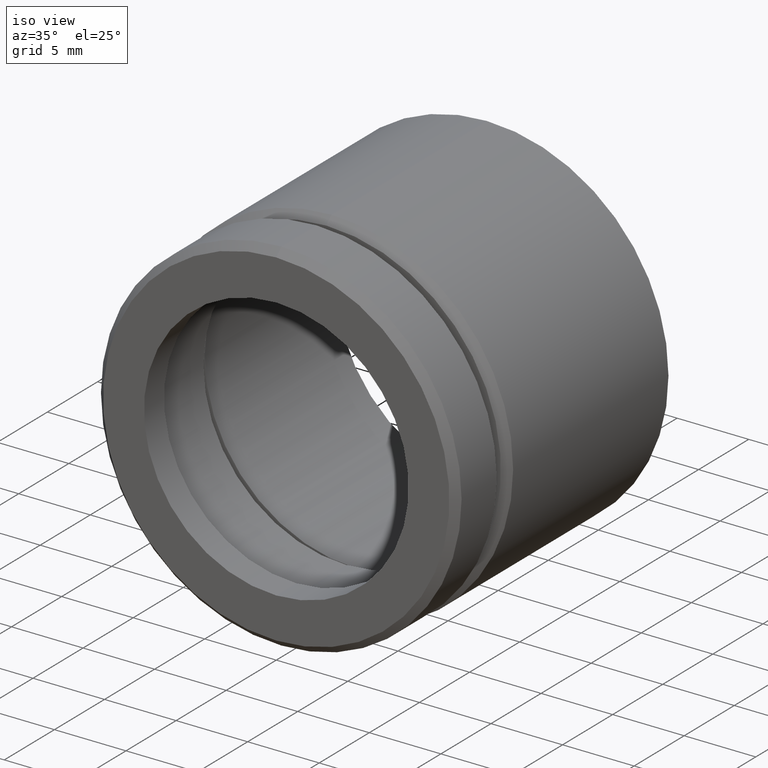
[diagram: clean part render]
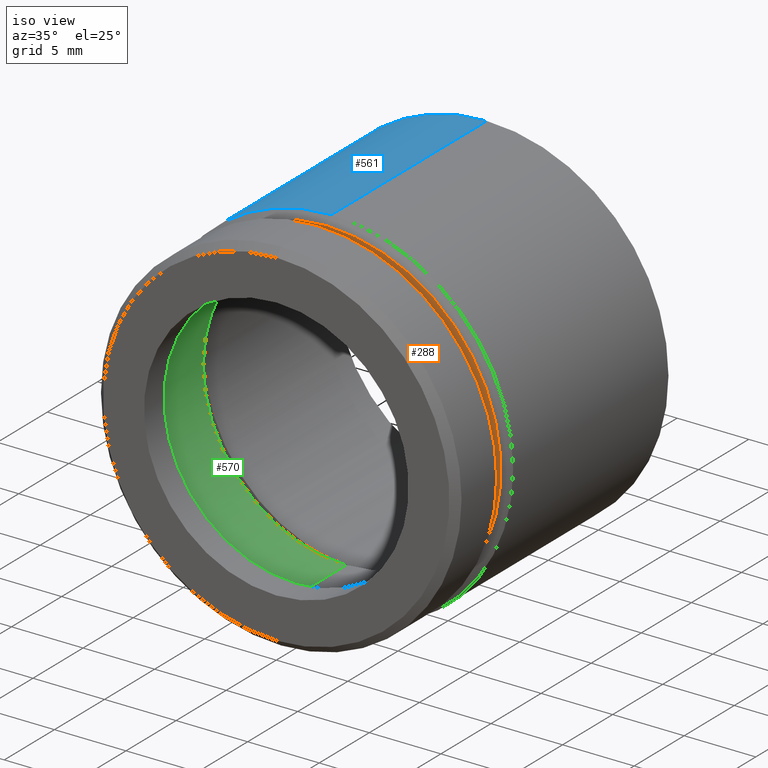
[diagram: same view with three faces highlighted in distinct colors, each labeled with its STEP entity id]
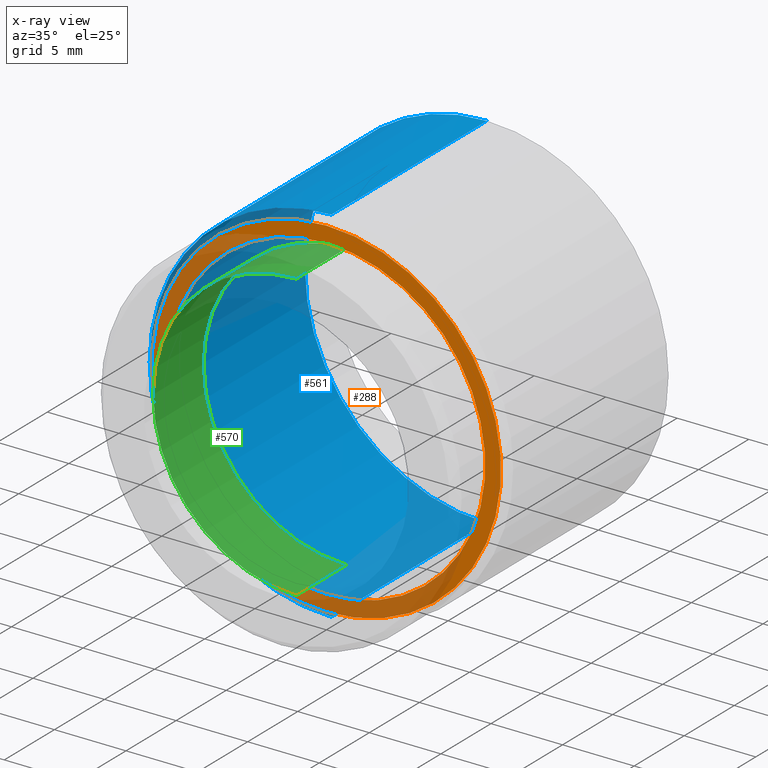
[diagram: x-ray of the same camera — body ghosted, the three highlighted faces saturated]
A machine part, iso view with three faces highlighted in distinct colors.
The next image is the same camera in x-ray (body ghosted, the three faces saturated) — at least one of them is partly hidden behind the body in this view.
Their STEP definitions:

[orange] entity #288 — the highlighted planar face has unit normal (0, -1, -0).
#27 = DIRECTION ( 'NONE',  ( -0.0000000000000000000, -1.000000000000000000, -0.0000000000000000000 ) ) ;
#32 = DIRECTION ( 'NONE',  ( -0.0000000000000000000, -1.000000000000000000, -0.0000000000000000000 ) ) ;
#34 = ORIENTED_EDGE ( 'NONE', *, *, #369, .T. ) ;
#64 = AXIS2_PLACEMENT_3D ( 'NONE', #417, #216, #829 ) ;
#124 = CARTESIAN_POINT ( 'NONE',  ( 0.0000000000000000000, 5.000000000000000000, 0.0000000000000000000 ) ) ;
#132 = DIRECTION ( 'NONE',  ( -0.0000000000000000000, -1.000000000000000000, -0.0000000000000000000 ) ) ;
#171 = VERTEX_POINT ( 'NONE', #540 ) ;
#183 = ORIENTED_EDGE ( 'NONE', *, *, #807, .F. ) ;
#197 = CARTESIAN_POINT ( 'NONE',  ( 0.0000000000000000000, 5.000000000000000000, 0.0000000000000000000 ) ) ;
#213 = FACE_BOUND ( 'NONE', #431, .T. ) ;
#216 = DIRECTION ( 'NONE',  ( -0.0000000000000000000, -1.000000000000000000, -0.0000000000000000000 ) ) ;
#224 = VERTEX_POINT ( 'NONE', #497 ) ;
#279 = ORIENTED_EDGE ( 'NONE', *, *, #415, .F. ) ;
#288 = ADVANCED_FACE ( 'NONE', ( #654, #213 ), #733, .T. ) ;
#295 = CIRCLE ( 'NONE', #386, 11.10000000000000000 ) ;
#369 = EDGE_CURVE ( 'NONE', #671, #171, #870, .T. ) ;
#372 = EDGE_LOOP ( 'NONE', ( #34, #601 ) ) ;
#386 = AXIS2_PLACEMENT_3D ( 'NONE', #124, #132, #443 ) ;
#402 = AXIS2_PLACEMENT_3D ( 'NONE', #869, #27, #482 ) ;
#415 = EDGE_CURVE ( 'NONE', #512, #224, #295, .T. ) ;
#417 = CARTESIAN_POINT ( 'NONE',  ( 0.0000000000000000000, 5.000000000000000000, 0.0000000000000000000 ) ) ;
#431 = EDGE_LOOP ( 'NONE', ( #279, #183 ) ) ;
#437 = EDGE_CURVE ( 'NONE', #171, #671, #556, .T. ) ;
#443 = DIRECTION ( 'NONE',  ( 0.0000000000000000000, 0.0000000000000000000, -1.000000000000000000 ) ) ;
#454 = CARTESIAN_POINT ( 'NONE',  ( 11.10000000000000000, 5.000000000000000000, 0.0000000000000000000 ) ) ;
#458 = DIRECTION ( 'NONE',  ( 0.0000000000000000000, 0.0000000000000000000, -1.000000000000000000 ) ) ;
#461 = DIRECTION ( 'NONE',  ( 0.0000000000000000000, -1.000000000000000000, -0.0000000000000000000 ) ) ;
#482 = DIRECTION ( 'NONE',  ( 0.0000000000000000000, 0.0000000000000000000, -1.000000000000000000 ) ) ;
#497 = CARTESIAN_POINT ( 'NONE',  ( 1.359357947053562200E-015, 5.000000000000000000, 11.10000000000000000 ) ) ;
#509 = AXIS2_PLACEMENT_3D ( 'NONE', #197, #32, #650 ) ;
#512 = VERTEX_POINT ( 'NONE', #854 ) ;
#524 = CARTESIAN_POINT ( 'NONE',  ( 0.0000000000000000000, 5.000000000000000000, 12.19999999999999900 ) ) ;
#540 = CARTESIAN_POINT ( 'NONE',  ( 1.524685264938454800E-015, 5.000000000000000000, -12.19999999999999900 ) ) ;
#543 = CIRCLE ( 'NONE', #64, 11.10000000000000000 ) ;
#556 = CIRCLE ( 'NONE', #402, 12.19999999999999900 ) ;
#601 = ORIENTED_EDGE ( 'NONE', *, *, #437, .T. ) ;
#650 = DIRECTION ( 'NONE',  ( 0.0000000000000000000, 0.0000000000000000000, -1.000000000000000000 ) ) ;
#654 = FACE_OUTER_BOUND ( 'NONE', #372, .T. ) ;
#671 = VERTEX_POINT ( 'NONE', #524 ) ;
#722 = AXIS2_PLACEMENT_3D ( 'NONE', #454, #461, #458 ) ;
#733 = PLANE ( 'NONE',  #722 ) ;
#807 = EDGE_CURVE ( 'NONE', #224, #512, #543, .T. ) ;
#829 = DIRECTION ( 'NONE',  ( 0.0000000000000000000, 0.0000000000000000000, -1.000000000000000000 ) ) ;
#854 = CARTESIAN_POINT ( 'NONE',  ( 0.0000000000000000000, 5.000000000000000000, -11.10000000000000000 ) ) ;
#869 = CARTESIAN_POINT ( 'NONE',  ( 0.0000000000000000000, 5.000000000000000000, 0.0000000000000000000 ) ) ;
#870 = CIRCLE ( 'NONE', #509, 12.19999999999999900 ) ;

[blue] entity #561 — the highlighted cylindrical surface (partial cylindrical patch) has radius 12.7 mm, axis along (-0, -1, -0).
#1 = ORIENTED_EDGE ( 'NONE', *, *, #832, .T. ) ;
#5 = DIRECTION ( 'NONE',  ( -0.0000000000000000000, -1.000000000000000000, -0.0000000000000000000 ) ) ;
#36 = VERTEX_POINT ( 'NONE', #282 ) ;
#49 = VERTEX_POINT ( 'NONE', #735 ) ;
#81 = CARTESIAN_POINT ( 'NONE',  ( 1.555301434917138400E-015, 20.99999999999998200, 12.69999999999999900 ) ) ;
#100 = VERTEX_POINT ( 'NONE', #81 ) ;
#128 = CARTESIAN_POINT ( 'NONE',  ( 0.0000000000000000000, 5.500000000000002700, 0.0000000000000000000 ) ) ;
#133 = LINE ( 'NONE', #689, #221 ) ;
#154 = DIRECTION ( 'NONE',  ( 0.0000000000000000000, 0.0000000000000000000, -1.000000000000000000 ) ) ;
#159 = CARTESIAN_POINT ( 'NONE',  ( 0.0000000000000000000, 0.0000000000000000000, -12.69999999999999900 ) ) ;
#175 = AXIS2_PLACEMENT_3D ( 'NONE', #340, #761, #154 ) ;
#205 = EDGE_LOOP ( 'NONE', ( #380, #1, #383, #455 ) ) ;
#212 = DIRECTION ( 'NONE',  ( -0.0000000000000000000, -1.000000000000000000, -0.0000000000000000000 ) ) ;
#221 = VECTOR ( 'NONE', #662, 1000.000000000000000 ) ;
#241 = AXIS2_PLACEMENT_3D ( 'NONE', #128, #746, #587 ) ;
#275 = CYLINDRICAL_SURFACE ( 'NONE', #175, 12.69999999999999900 ) ;
#280 = CIRCLE ( 'NONE', #413, 12.69999999999999900 ) ;
#282 = CARTESIAN_POINT ( 'NONE',  ( 0.0000000000000000000, 5.500000000000002700, -12.69999999999999900 ) ) ;
#340 = CARTESIAN_POINT ( 'NONE',  ( 0.0000000000000000000, 0.0000000000000000000, 0.0000000000000000000 ) ) ;
#380 = ORIENTED_EDGE ( 'NONE', *, *, #859, .F. ) ;
#383 = ORIENTED_EDGE ( 'NONE', *, *, #826, .T. ) ;
#410 = VERTEX_POINT ( 'NONE', #779 ) ;
#413 = AXIS2_PLACEMENT_3D ( 'NONE', #698, #212, #862 ) ;
#455 = ORIENTED_EDGE ( 'NONE', *, *, #495, .T. ) ;
#495 = EDGE_CURVE ( 'NONE', #36, #410, #760, .T. ) ;
#561 = ADVANCED_FACE ( 'NONE', ( #805 ), #275, .T. ) ;
#587 = DIRECTION ( 'NONE',  ( 0.0000000000000000000, 0.0000000000000000000, -1.000000000000000000 ) ) ;
#594 = VECTOR ( 'NONE', #5, 1000.000000000000000 ) ;
#662 = DIRECTION ( 'NONE',  ( -0.0000000000000000000, -1.000000000000000000, -0.0000000000000000000 ) ) ;
#683 = LINE ( 'NONE', #159, #594 ) ;
#689 = CARTESIAN_POINT ( 'NONE',  ( 1.555301434917138400E-015, 0.0000000000000000000, 12.69999999999999900 ) ) ;
#698 = CARTESIAN_POINT ( 'NONE',  ( 0.0000000000000000000, 20.99999999999998200, 0.0000000000000000000 ) ) ;
#735 = CARTESIAN_POINT ( 'NONE',  ( 0.0000000000000000000, 20.99999999999998200, -12.69999999999999900 ) ) ;
#746 = DIRECTION ( 'NONE',  ( 0.0000000000000000000, 1.000000000000000000, 0.0000000000000000000 ) ) ;
#760 = CIRCLE ( 'NONE', #241, 12.69999999999999900 ) ;
#761 = DIRECTION ( 'NONE',  ( -0.0000000000000000000, -1.000000000000000000, -0.0000000000000000000 ) ) ;
#779 = CARTESIAN_POINT ( 'NONE',  ( 1.555301434917138400E-015, 5.500000000000002700, 12.69999999999999900 ) ) ;
#805 = FACE_OUTER_BOUND ( 'NONE', #205, .T. ) ;
#826 = EDGE_CURVE ( 'NONE', #49, #36, #683, .T. ) ;
#832 = EDGE_CURVE ( 'NONE', #100, #49, #280, .T. ) ;
#859 = EDGE_CURVE ( 'NONE', #100, #410, #133, .T. ) ;
#862 = DIRECTION ( 'NONE',  ( 0.0000000000000000000, 0.0000000000000000000, 1.000000000000000000 ) ) ;

[green] entity #570 — the highlighted cylindrical surface (partial cylindrical patch) has radius 10 mm, axis along (-0, -1, -0).
#6 = LINE ( 'NONE', #720, #195 ) ;
#13 = CARTESIAN_POINT ( 'NONE',  ( 0.0000000000000000000, 0.0000000000000000000, -10.00000000000000200 ) ) ;
#69 = CARTESIAN_POINT ( 'NONE',  ( 0.0000000000000000000, 6.999999999999999100, 0.0000000000000000000 ) ) ;
#102 = DIRECTION ( 'NONE',  ( 0.0000000000000000000, 0.0000000000000000000, -1.000000000000000000 ) ) ;
#106 = CARTESIAN_POINT ( 'NONE',  ( 0.0000000000000000000, 6.999999999999999100, -10.00000000000000400 ) ) ;
#119 = DIRECTION ( 'NONE',  ( -0.0000000000000000000, -1.000000000000000000, -0.0000000000000000000 ) ) ;
#145 = AXIS2_PLACEMENT_3D ( 'NONE', #167, #119, #102 ) ;
#147 = CARTESIAN_POINT ( 'NONE',  ( 1.224646799147353500E-015, 1.999999999999999600, 10.00000000000000200 ) ) ;
#167 = CARTESIAN_POINT ( 'NONE',  ( 0.0000000000000000000, 0.0000000000000000000, 0.0000000000000000000 ) ) ;
#195 = VECTOR ( 'NONE', #388, 1000.000000000000000 ) ;
#206 = EDGE_CURVE ( 'NONE', #610, #661, #598, .T. ) ;
#250 = DIRECTION ( 'NONE',  ( 0.0000000000000000000, 0.0000000000000000000, -1.000000000000000000 ) ) ;
#287 = LINE ( 'NONE', #13, #527 ) ;
#299 = CARTESIAN_POINT ( 'NONE',  ( 0.0000000000000000000, 1.999999999999999600, -10.00000000000000200 ) ) ;
#347 = ORIENTED_EDGE ( 'NONE', *, *, #206, .F. ) ;
#363 = DIRECTION ( 'NONE',  ( -0.0000000000000000000, -1.000000000000000000, -0.0000000000000000000 ) ) ;
#387 = CARTESIAN_POINT ( 'NONE',  ( 1.224646799147353700E-015, 6.999999999999999100, 10.00000000000000400 ) ) ;
#388 = DIRECTION ( 'NONE',  ( -0.0000000000000000000, -1.000000000000000000, -0.0000000000000000000 ) ) ;
#399 = CIRCLE ( 'NONE', #723, 10.00000000000000200 ) ;
#442 = EDGE_LOOP ( 'NONE', ( #347, #781, #613, #544 ) ) ;
#474 = EDGE_CURVE ( 'NONE', #610, #706, #6, .T. ) ;
#488 = DIRECTION ( 'NONE',  ( 0.0000000000000000000, 0.0000000000000000000, -1.000000000000000000 ) ) ;
#501 = CARTESIAN_POINT ( 'NONE',  ( 0.0000000000000000000, 1.999999999999999600, 0.0000000000000000000 ) ) ;
#527 = VECTOR ( 'NONE', #363, 1000.000000000000000 ) ;
#544 = ORIENTED_EDGE ( 'NONE', *, *, #726, .F. ) ;
#570 = ADVANCED_FACE ( 'NONE', ( #629 ), #607, .F. ) ;
#598 = CIRCLE ( 'NONE', #812, 10.00000000000000400 ) ;
#607 = CYLINDRICAL_SURFACE ( 'NONE', #145, 10.00000000000000200 ) ;
#610 = VERTEX_POINT ( 'NONE', #387 ) ;
#613 = ORIENTED_EDGE ( 'NONE', *, *, #750, .T. ) ;
#629 = FACE_OUTER_BOUND ( 'NONE', #442, .T. ) ;
#661 = VERTEX_POINT ( 'NONE', #106 ) ;
#706 = VERTEX_POINT ( 'NONE', #147 ) ;
#720 = CARTESIAN_POINT ( 'NONE',  ( 1.224646799147353500E-015, 0.0000000000000000000, 10.00000000000000200 ) ) ;
#723 = AXIS2_PLACEMENT_3D ( 'NONE', #501, #851, #488 ) ;
#726 = EDGE_CURVE ( 'NONE', #661, #758, #287, .T. ) ;
#750 = EDGE_CURVE ( 'NONE', #706, #758, #399, .T. ) ;
#757 = DIRECTION ( 'NONE',  ( -0.0000000000000000000, -1.000000000000000000, -0.0000000000000000000 ) ) ;
#758 = VERTEX_POINT ( 'NONE', #299 ) ;
#781 = ORIENTED_EDGE ( 'NONE', *, *, #474, .T. ) ;
#812 = AXIS2_PLACEMENT_3D ( 'NONE', #69, #757, #250 ) ;
#851 = DIRECTION ( 'NONE',  ( -0.0000000000000000000, -1.000000000000000000, -0.0000000000000000000 ) ) ;